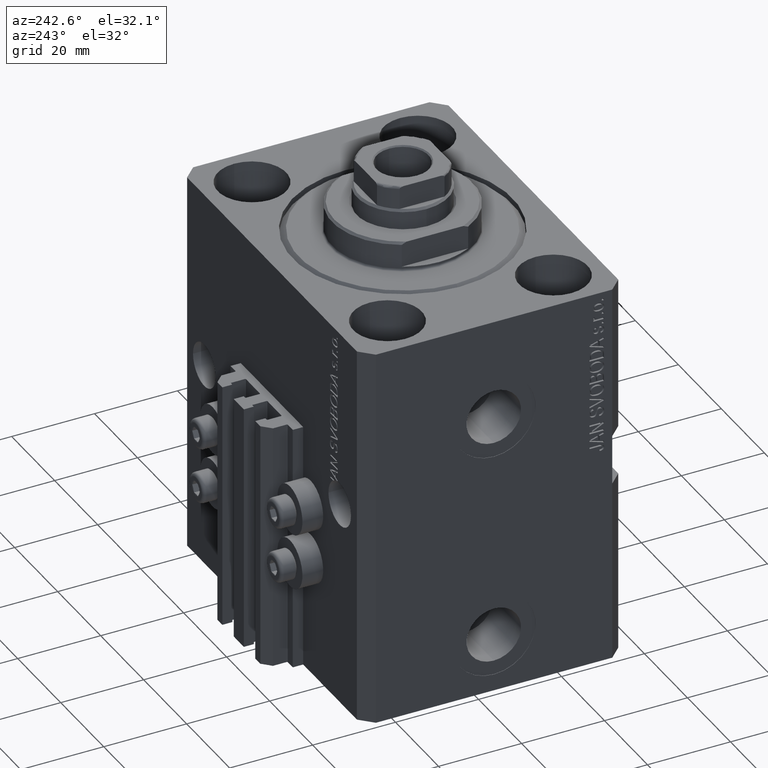
[diagram: clean part render]
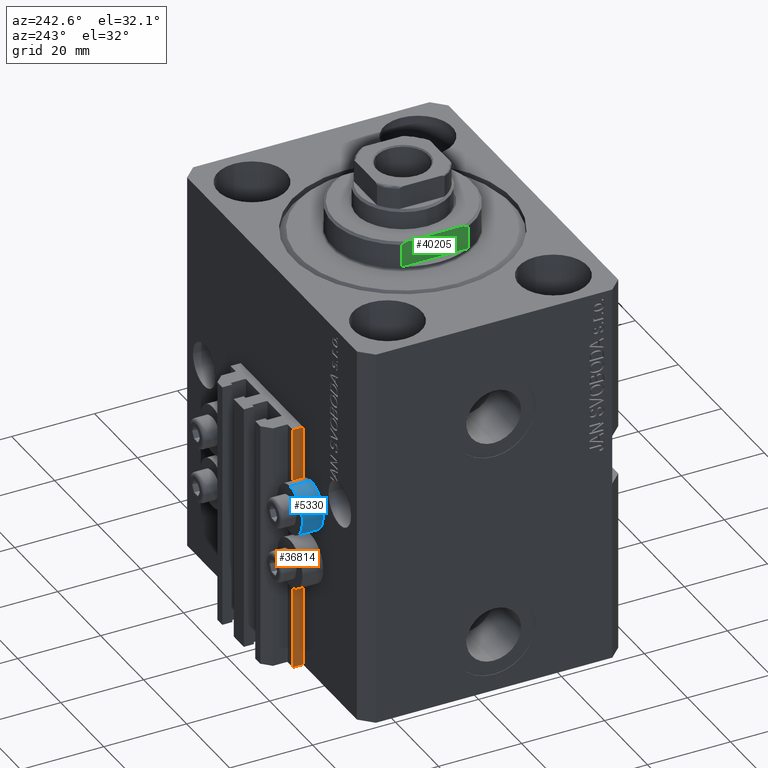
[diagram: same view with three faces highlighted in distinct colors, each labeled with its STEP entity id]
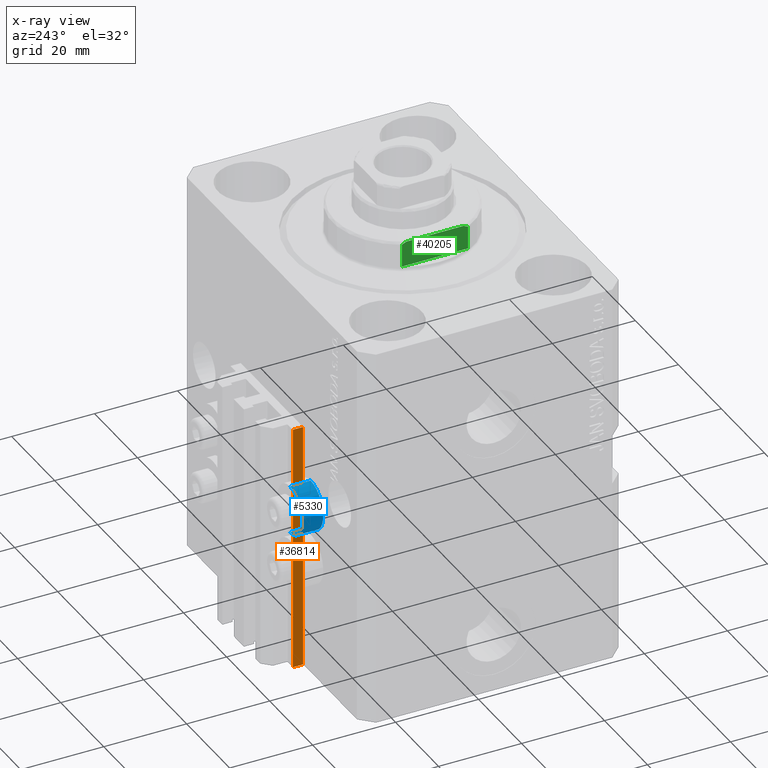
[diagram: x-ray of the same camera — body ghosted, the three highlighted faces saturated]
A machine part, auxiliary view with three faces highlighted in distinct colors.
The next image is the same camera in x-ray (body ghosted, the three faces saturated) — at least one of them is partly hidden behind the body in this view.
Their STEP definitions:

[orange] entity #36814 — the highlighted planar face has unit normal (-1, 0, 0).
#49 = ORIENTED_EDGE ( 'NONE', *, *, #8661, .F. ) ;
#711 = AXIS2_PLACEMENT_3D ( 'NONE', #1132, #1366, #16771 ) ;
#808 = VECTOR ( 'NONE', #25129, 1000.000000000000000 ) ;
#1132 = CARTESIAN_POINT ( 'NONE',  ( -14.50000000000000000, 33.99999999999998579, -93.00000000000000000 ) ) ;
#1266 = ORIENTED_EDGE ( 'NONE', *, *, #47218, .T. ) ;
#1366 = DIRECTION ( 'NONE',  ( -1.000000000000000000, 0.000000000000000000, 0.000000000000000000 ) ) ;
#3508 = CARTESIAN_POINT ( 'NONE',  ( -14.50000000000000000, 33.99999999999998579, -93.00000000000000000 ) ) ;
#5230 = LINE ( 'NONE', #45407, #47577 ) ;
#6375 = VERTEX_POINT ( 'NONE', #29390 ) ;
#7351 = CARTESIAN_POINT ( 'NONE',  ( -14.50000000000000000, 31.50000000000000000, -93.00000000000000000 ) ) ;
#8661 = EDGE_CURVE ( 'NONE', #6375, #25627, #10776, .T. ) ;
#10776 = LINE ( 'NONE', #28561, #16240 ) ;
#11509 = ORIENTED_EDGE ( 'NONE', *, *, #30652, .F. ) ;
#13950 = DIRECTION ( 'NONE',  ( 0.000000000000000000, -1.000000000000000000, 0.000000000000000000 ) ) ;
#14319 = ORIENTED_EDGE ( 'NONE', *, *, #40325, .T. ) ;
#14619 = DIRECTION ( 'NONE',  ( 0.000000000000000000, -1.000000000000000000, 0.000000000000000000 ) ) ;
#16240 = VECTOR ( 'NONE', #14619, 1000.000000000000000 ) ;
#16297 = FACE_OUTER_BOUND ( 'NONE', #19212, .T. ) ;
#16771 = DIRECTION ( 'NONE',  ( 0.000000000000000000, 0.000000000000000000, 1.000000000000000000 ) ) ;
#17697 = LINE ( 'NONE', #7351, #808 ) ;
#19212 = EDGE_LOOP ( 'NONE', ( #49, #11509, #1266, #14319 ) ) ;
#19420 = DIRECTION ( 'NONE',  ( 0.000000000000000000, 0.000000000000000000, 1.000000000000000000 ) ) ;
#21682 = VECTOR ( 'NONE', #13950, 1000.000000000000000 ) ;
#24994 = LINE ( 'NONE', #46904, #21682 ) ;
#25129 = DIRECTION ( 'NONE',  ( 0.000000000000000000, 0.000000000000000000, 1.000000000000000000 ) ) ;
#25627 = VERTEX_POINT ( 'NONE', #33359 ) ;
#28561 = CARTESIAN_POINT ( 'NONE',  ( -14.50000000000000000, 33.99999999999998579, -33.00000000000000000 ) ) ;
#29390 = CARTESIAN_POINT ( 'NONE',  ( -14.50000000000000000, 33.99999999999998579, -33.00000000000000000 ) ) ;
#29768 = CARTESIAN_POINT ( 'NONE',  ( -14.50000000000000000, 31.50000000000000000, -93.00000000000000000 ) ) ;
#29957 = VERTEX_POINT ( 'NONE', #3508 ) ;
#30652 = EDGE_CURVE ( 'NONE', #29957, #6375, #5230, .T. ) ;
#33359 = CARTESIAN_POINT ( 'NONE',  ( -14.50000000000000000, 31.50000000000000000, -33.00000000000000000 ) ) ;
#36814 = ADVANCED_FACE ( 'NONE', ( #16297 ), #42264, .T. ) ;
#40325 = EDGE_CURVE ( 'NONE', #46314, #25627, #17697, .T. ) ;
#42264 = PLANE ( 'NONE',  #711 ) ;
#45407 = CARTESIAN_POINT ( 'NONE',  ( -14.50000000000000000, 33.99999999999998579, -93.00000000000000000 ) ) ;
#46314 = VERTEX_POINT ( 'NONE', #29768 ) ;
#46904 = CARTESIAN_POINT ( 'NONE',  ( -14.50000000000000000, 33.99999999999998579, -93.00000000000000000 ) ) ;
#47218 = EDGE_CURVE ( 'NONE', #29957, #46314, #24994, .T. ) ;
#47577 = VECTOR ( 'NONE', #19420, 1000.000000000000000 ) ;

[blue] entity #5330 — the highlighted cylindrical surface (edge-blend (fillet) strip) has radius 5.8 mm, axis along (0, 1, 0).
#2804 = DIRECTION ( 'NONE',  ( 0.000000000000000000, 0.000000000000000000, 1.000000000000000000 ) ) ;
#3090 = CARTESIAN_POINT ( 'NONE',  ( -18.00000000000000355, 31.50000000000000000, -44.60000000000000142 ) ) ;
#5330 = ADVANCED_FACE ( 'NONE', ( #27485 ), #38563, .T. ) ;
#5371 = CARTESIAN_POINT ( 'NONE',  ( -18.00000000000000355, 36.49999999996099120, -50.39999999999999858 ) ) ;
#5771 = CARTESIAN_POINT ( 'NONE',  ( -18.00000000000000355, 36.49999999996099120, -56.20000000000000284 ) ) ;
#9792 = DIRECTION ( 'NONE',  ( -0.000000000000000000, 1.000000000000000000, -0.000000000000000000 ) ) ;
#10333 = DIRECTION ( 'NONE',  ( -0.000000000000000000, 1.000000000000000000, -0.000000000000000000 ) ) ;
#10518 = ORIENTED_EDGE ( 'NONE', *, *, #21620, .T. ) ;
#10903 = DIRECTION ( 'NONE',  ( 0.000000000000000000, 0.000000000000000000, 1.000000000000000000 ) ) ;
#14499 = DIRECTION ( 'NONE',  ( -0.000000000000000000, 1.000000000000000000, -0.000000000000000000 ) ) ;
#16542 = VERTEX_POINT ( 'NONE', #24051 ) ;
#19208 = CIRCLE ( 'NONE', #25355, 5.799999999999999822 ) ;
#20091 = AXIS2_PLACEMENT_3D ( 'NONE', #5371, #27006, #42415 ) ;
#21620 = EDGE_CURVE ( 'NONE', #24289, #30408, #35035, .T. ) ;
#22134 = EDGE_LOOP ( 'NONE', ( #24230, #32650, #10518, #25749 ) ) ;
#23426 = VECTOR ( 'NONE', #9792, 1000.000000000000000 ) ;
#23562 = DIRECTION ( 'NONE',  ( -0.000000000000000000, 1.000000000000000000, -0.000000000000000000 ) ) ;
#24051 = CARTESIAN_POINT ( 'NONE',  ( -18.00000000000000355, 36.49999999996099120, -56.20000000000000284 ) ) ;
#24230 = ORIENTED_EDGE ( 'NONE', *, *, #41544, .F. ) ;
#24289 = VERTEX_POINT ( 'NONE', #3090 ) ;
#25136 = AXIS2_PLACEMENT_3D ( 'NONE', #47448, #14499, #10903 ) ;
#25355 = AXIS2_PLACEMENT_3D ( 'NONE', #43224, #23562, #2804 ) ;
#25749 = ORIENTED_EDGE ( 'NONE', *, *, #26273, .F. ) ;
#26273 = EDGE_CURVE ( 'NONE', #16542, #30408, #26674, .T. ) ;
#26674 = CIRCLE ( 'NONE', #25136, 5.799999999999999822 ) ;
#27006 = DIRECTION ( 'NONE',  ( -0.000000000000000000, 1.000000000000000000, -0.000000000000000000 ) ) ;
#27485 = FACE_OUTER_BOUND ( 'NONE', #22134, .T. ) ;
#28521 = VECTOR ( 'NONE', #10333, 1000.000000000000000 ) ;
#30408 = VERTEX_POINT ( 'NONE', #37762 ) ;
#30944 = CARTESIAN_POINT ( 'NONE',  ( -18.00000000000000355, 36.49999999996099120, -44.60000000000000142 ) ) ;
#31937 = VERTEX_POINT ( 'NONE', #42692 ) ;
#32650 = ORIENTED_EDGE ( 'NONE', *, *, #42745, .T. ) ;
#35035 = LINE ( 'NONE', #30944, #23426 ) ;
#37762 = CARTESIAN_POINT ( 'NONE',  ( -18.00000000000000355, 36.49999999996099120, -44.60000000000000142 ) ) ;
#38563 = CYLINDRICAL_SURFACE ( 'NONE', #20091, 5.799999999999999822 ) ;
#41544 = EDGE_CURVE ( 'NONE', #31937, #16542, #46892, .T. ) ;
#42415 = DIRECTION ( 'NONE',  ( 0.000000000000000000, 0.000000000000000000, 1.000000000000000000 ) ) ;
#42692 = CARTESIAN_POINT ( 'NONE',  ( -18.00000000000000355, 31.50000000000000000, -56.20000000000000284 ) ) ;
#42745 = EDGE_CURVE ( 'NONE', #31937, #24289, #19208, .T. ) ;
#43224 = CARTESIAN_POINT ( 'NONE',  ( -18.00000000000000355, 31.50000000000000000, -50.39999999999999858 ) ) ;
#46892 = LINE ( 'NONE', #5771, #28521 ) ;
#47448 = CARTESIAN_POINT ( 'NONE',  ( -18.00000000000000355, 36.49999999996099120, -50.39999999999999858 ) ) ;

[green] entity #40205 — the highlighted planar face has unit normal (-1, 0, 0).
#746 = CARTESIAN_POINT ( 'NONE',  ( 15.00000000000000000, -7.629305121525828071, -6.674444648693746984 ) ) ;
#1589 = CARTESIAN_POINT ( 'NONE',  ( 15.00000000000000000, 8.000000000000001776, -7.000000000000000000 ) ) ;
#1781 = CARTESIAN_POINT ( 'NONE',  ( 15.00000000000000000, 8.000000000000001776, -6.500000000000013323 ) ) ;
#2811 = CARTESIAN_POINT ( 'NONE',  ( 15.00000000000000000, -42.42640687119285303, -1.000000000000000000 ) ) ;
#3004 = DIRECTION ( 'NONE',  ( 0.000000000000000000, 0.000000000000000000, -1.000000000000000000 ) ) ;
#3723 = DIRECTION ( 'NONE',  ( 1.000000000000000000, 0.000000000000000000, -0.000000000000000000 ) ) ;
#4769 = CARTESIAN_POINT ( 'NONE',  ( 14.99999999999999645, 8.000000000000003553, -1.000000000000000000 ) ) ;
#4952 = LINE ( 'NONE', #1589, #20828 ) ;
#6397 = CARTESIAN_POINT ( 'NONE',  ( 15.00000000000000000, -8.000000000000001776, -7.000000000000000000 ) ) ;
#7677 = VECTOR ( 'NONE', #3004, 1000.000000000000000 ) ;
#7904 = VECTOR ( 'NONE', #10334, 1000.000000000000000 ) ;
#9096 = ORIENTED_EDGE ( 'NONE', *, *, #29577, .F. ) ;
#9427 = CARTESIAN_POINT ( 'NONE',  ( 15.00000000000000000, 8.000000000000001776, -6.500000000000013323 ) ) ;
#10334 = DIRECTION ( 'NONE',  ( 0.000000000000000000, -1.000000000000000000, -0.000000000000000000 ) ) ;
#11330 = EDGE_CURVE ( 'NONE', #18381, #12468, #25927, .T. ) ;
#12084 = ORIENTED_EDGE ( 'NONE', *, *, #31610, .T. ) ;
#12370 = CARTESIAN_POINT ( 'NONE',  ( 15.00000000000000000, 7.253126193285960532, -6.842000017654668476 ) ) ;
#12468 = VERTEX_POINT ( 'NONE', #47596 ) ;
#12935 = CARTESIAN_POINT ( 'NONE',  ( 15.00000000000000000, -8.000000000000001776, -6.500000000000013323 ) ) ;
#15502 = CARTESIAN_POINT ( 'NONE',  ( 14.99999999999999645, 6.873863542433817031, -7.000000000000000000 ) ) ;
#17270 = LINE ( 'NONE', #2811, #18384 ) ;
#17571 = CARTESIAN_POINT ( 'NONE',  ( 14.99999999999999645, 6.873863542433817031, -7.000000000000000000 ) ) ;
#17670 = B_SPLINE_CURVE_WITH_KNOTS ( 'NONE', 3,
 ( #1781, #45311, #12370, #15502 ),
 .UNSPECIFIED., .F., .F.,
 ( 4, 4 ),
 ( 0.03336039268696996268, 0.03459498301323797598 ),
 .UNSPECIFIED. ) ;
#18175 = B_SPLINE_CURVE_WITH_KNOTS ( 'NONE', 3,
 ( #36595, #21930, #746, #37537 ),
 .UNSPECIFIED., .F., .F.,
 ( 4, 4 ),
 ( 0.04875332532859021767, 0.04998905627745620778 ),
 .UNSPECIFIED. ) ;
#18381 = VERTEX_POINT ( 'NONE', #17571 ) ;
#18384 = VECTOR ( 'NONE', #28778, 1000.000000000000000 ) ;
#20082 = VERTEX_POINT ( 'NONE', #12935 ) ;
#20828 = VECTOR ( 'NONE', #41524, 1000.000000000000000 ) ;
#21288 = DIRECTION ( 'NONE',  ( -0.000000000000000000, 0.000000000000000000, -1.000000000000000000 ) ) ;
#21764 = PLANE ( 'NONE',  #28482 ) ;
#21930 = CARTESIAN_POINT ( 'NONE',  ( 15.00000000000000000, -7.254193676168162241, -6.841555306644511170 ) ) ;
#25612 = FACE_OUTER_BOUND ( 'NONE', #45920, .T. ) ;
#25660 = ORIENTED_EDGE ( 'NONE', *, *, #11330, .F. ) ;
#25852 = CARTESIAN_POINT ( 'NONE',  ( 15.00000000000000000, -42.42640687119285303, -1.000000000000000000 ) ) ;
#25927 = LINE ( 'NONE', #32433, #7904 ) ;
#28035 = LINE ( 'NONE', #6397, #7677 ) ;
#28482 = AXIS2_PLACEMENT_3D ( 'NONE', #25852, #3723, #21288 ) ;
#28583 = EDGE_CURVE ( 'NONE', #35409, #18381, #17670, .T. ) ;
#28778 = DIRECTION ( 'NONE',  ( 0.000000000000000000, -1.000000000000000000, -0.000000000000000000 ) ) ;
#29577 = EDGE_CURVE ( 'NONE', #12468, #20082, #18175, .T. ) ;
#31610 = EDGE_CURVE ( 'NONE', #44411, #39791, #17270, .T. ) ;
#31935 = CARTESIAN_POINT ( 'NONE',  ( 14.99999999999999645, -8.000000000000003553, -1.000000000000000000 ) ) ;
#32433 = CARTESIAN_POINT ( 'NONE',  ( 15.00000000000000000, -42.42640687119285303, -7.000000000000000000 ) ) ;
#34757 = ORIENTED_EDGE ( 'NONE', *, *, #28583, .F. ) ;
#35219 = EDGE_CURVE ( 'NONE', #39791, #20082, #28035, .T. ) ;
#35409 = VERTEX_POINT ( 'NONE', #9427 ) ;
#35569 = ORIENTED_EDGE ( 'NONE', *, *, #44720, .T. ) ;
#36595 = CARTESIAN_POINT ( 'NONE',  ( 14.99999999999999645, -6.873863542433817031, -7.000000000000000000 ) ) ;
#37537 = CARTESIAN_POINT ( 'NONE',  ( 15.00000000000000000, -8.000000000000001776, -6.500000000000013323 ) ) ;
#39791 = VERTEX_POINT ( 'NONE', #31935 ) ;
#40205 = ADVANCED_FACE ( 'NONE', ( #25612 ), #21764, .T. ) ;
#41524 = DIRECTION ( 'NONE',  ( -0.000000000000000000, -0.000000000000000000, 1.000000000000000000 ) ) ;
#44234 = ORIENTED_EDGE ( 'NONE', *, *, #35219, .T. ) ;
#44411 = VERTEX_POINT ( 'NONE', #4769 ) ;
#44720 = EDGE_CURVE ( 'NONE', #35409, #44411, #4952, .T. ) ;
#45311 = CARTESIAN_POINT ( 'NONE',  ( 15.00000000000000000, 7.628315461082496363, -6.674910371255315056 ) ) ;
#45920 = EDGE_LOOP ( 'NONE', ( #35569, #12084, #44234, #9096, #25660, #34757 ) ) ;
#47596 = CARTESIAN_POINT ( 'NONE',  ( 14.99999999999999645, -6.873863542433817031, -7.000000000000000000 ) ) ;